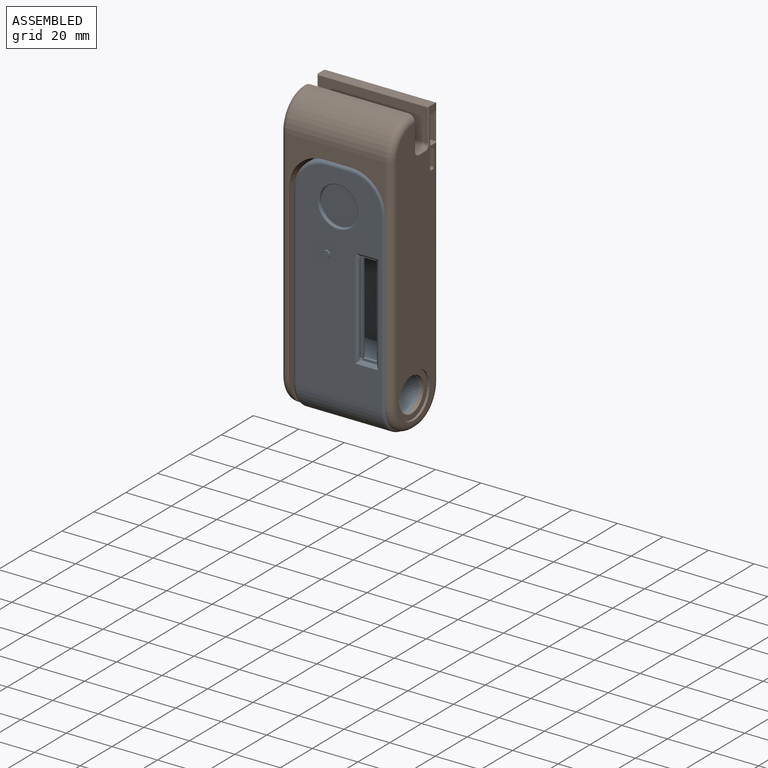
[diagram: assembled view]
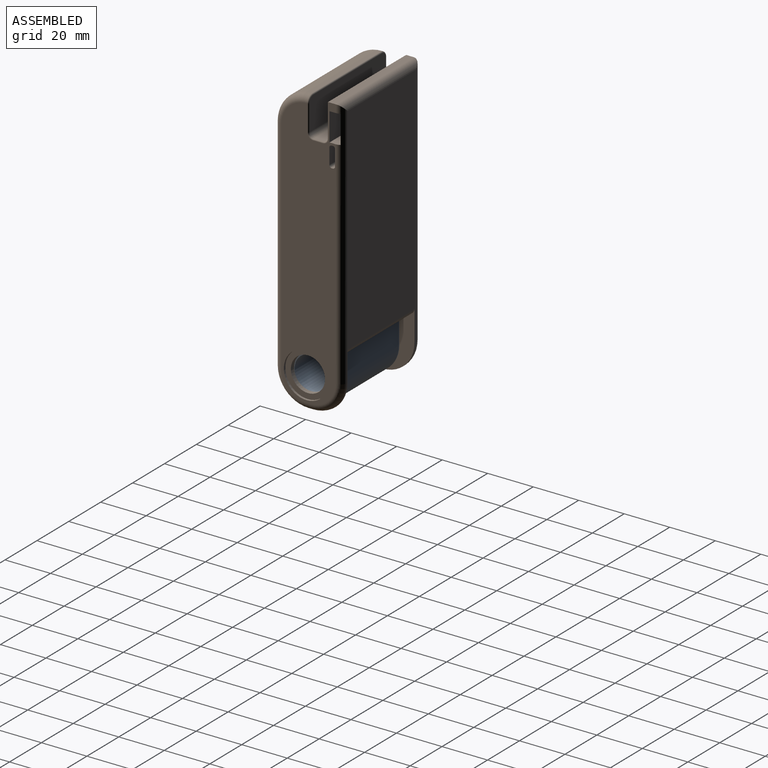
[diagram: assembled view, second angle]
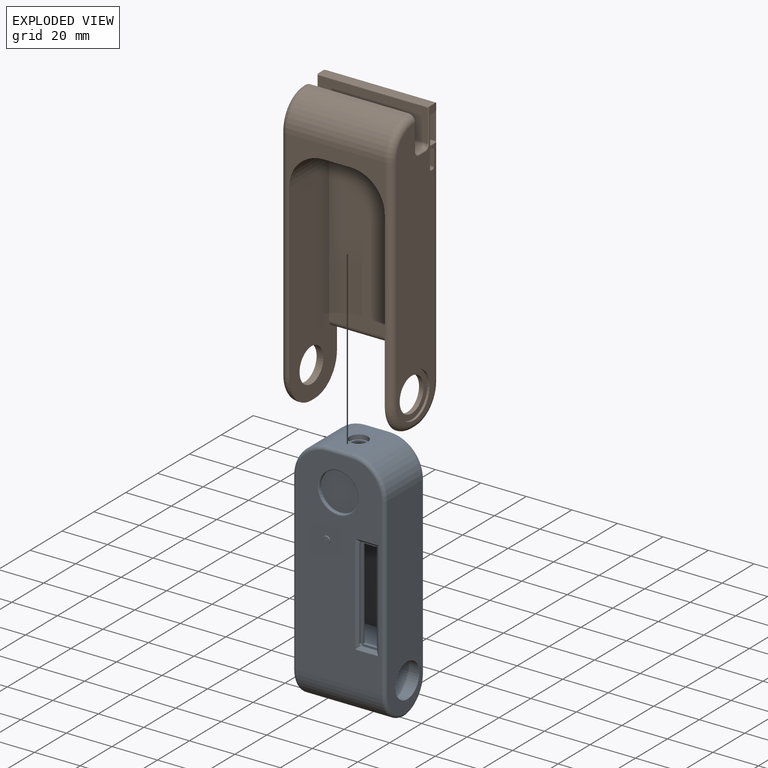
[diagram: exploded view]
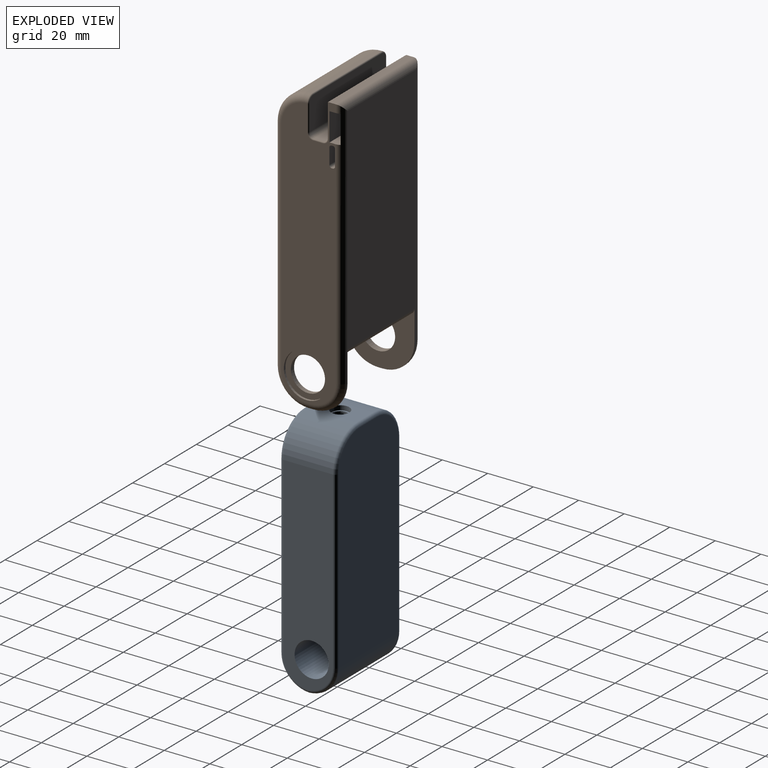
[diagram: exploded view, second angle]
ASSEMBLY  parts=2 mates=2
PART A: 62 faces, bbox 43.1x26.9x107.3 mm
  f0: cylinder r=3.25mm len=6.5mm, axis (0,0,1), area 20.4mm2, adj f12,f34
  f1: plane 6x1mm, normal (0,0,-1), area 6mm2, adj f2,f4,f5,f17
  f2: plane 40x1mm, normal (1,0,0), area 40mm2, adj f1,f3,f5,f17
  f3: plane 6x1mm, normal (0,0,1), area 6mm2, adj f2,f4,f5,f17
  f4: plane 40x1mm, normal (-1,0,0), area 40mm2, adj f1,f3,f5,f17
  f5: plane 74.94x34.6mm, normal (0,1,0), area 2291.1mm2, adj f1,f2,f3,f4,f7,f8,f9,f10
  f6: plane 74.94x34.6mm, normal (0,-1,0), area 2531.1mm2, adj f7,f8,f9,f10,f11,f12
  f7: cylinder r=12mm len=19mm, axis (0,-1,0), area 358.1mm2, adj f5,f6,f8,f12
  f8: plane 62.94x19mm, normal (-1,0,0), area 1195.8mm2, adj f5,f6,f7,f9
  f9: plane 34.6x19mm, normal (0,0,1), area 657.4mm2, adj f5,f6,f8,f10
  f10: plane 62.94x19mm, normal (1,0,0), area 1195.8mm2, adj f5,f6,f9,f11
  f11: cylinder r=12mm len=19mm, axis (0,-1,0), area 358.1mm2, adj f5,f6,f10,f12
  f12: plane 19x10.6mm, normal (0,0,-1), area 168.2mm2, adj f0,f5,f6,f7,f11
  f13: plane 40x1mm, normal (1,0,0), area 40mm2, adj f17,f53,f57,f59
  f14: plane 6x1mm, normal (0,0,1), area 6mm2, adj f17,f55,f56,f57
  f15: plane 40x1mm, normal (-1,0,0), area 40mm2, adj f17,f54,f56,f58
  f16: plane 6x1mm, normal (0,0,-1), area 6mm2, adj f17,f52,f58,f59
  f17: plane 42x8mm, normal (0,-1,0), area 94mm2, adj f1,f2,f3,f4,f13,f14,f15,f16
  f18: plane 90.5x37.6mm, normal (0,1,0), area 3324.6mm2, adj f19,f41,f43,f45,f47,f49
  f19: cylinder r=13mm len=37.6mm, axis (1,0,0), area 745.2mm2, adj f18,f25,f39,f51
  f20: cylinder r=7.5mm len=40.6mm, axis (1,0,0), area 1913.2mm2, adj f24,f26
  f21: cylinder r=15mm len=21.8mm, axis (0,-1,0), area 513.7mm2, adj f22,f26,f46,f47
  f22: plane 21.8x10.6mm, normal (0,0,1), area 180.8mm2, adj f21,f23,f35,f44,f45
  f23: cylinder r=15mm len=21.8mm, axis (0,1,0), area 513.7mm2, adj f22,f24,f42,f43
  f24: plane 88.48x21.8mm, normal (1,0,0), area 1695.8mm2, adj f20,f23,f38,f39,f40,f41
  f25: cylinder r=13mm len=37.6mm, axis (-1,0,0), area 745.2mm2, adj f19,f27,f38,f50
  f26: plane 88.48x21.8mm, normal (-1,0,0), area 1695.8mm2, adj f20,f21,f48,f49,f50,f51
  f27: plane 90.5x37.6mm, normal (0,-1,0), area 2621.6mm2, adj f25,f29,f40,f42,f44,f46,f48,f52
  f28: cylinder r=1.25mm len=2.5mm, axis (0,1,0), area 0.8mm2, adj f30,f31
  f29: cylinder r=1.5mm len=3mm, axis (0,1,0), area 2.8mm2, adj f27,f60
  f30: plane 2.6x2.6mm, normal (0,-1,0), area 0.4mm2, adj f28,f60
  f31: plane 2.5x2.5mm, normal (0,-1,0), area 4.5mm2, adj f28,f32
  f32: cylinder r=0.38mm len=0.76mm, axis (0,1,0), area 0.5mm2, adj f31,f33
  f33: plane 0.76x0.76mm, normal (0,-1,0), area 0.4mm2, adj f32
  f34: plane 8x8mm, normal (0,0,1), area 17.1mm2, adj f0,f35
  f35: cylinder r=4mm len=8mm, axis (0,0,1), area 50.3mm2, adj f22,f34
  f36: cylinder r=8.53mm len=17.05mm, axis (0,-1,0), area 53.6mm2, adj f37,f61
  f37: plane 17.05x17.05mm, normal (0,-1,0), area 228.3mm2, adj f36
  f38: torus R=11.5mm, axis (1,0,0), area 44.7mm2, adj f24,f25,f39,f40
  f39: torus R=11.5mm, axis (1,0,0), area 44.7mm2, adj f19,f24,f38,f41
  f40: cylinder r=1.5mm len=77mm, axis (0,0,-1), area 181.4mm2, adj f24,f27,f38,f42
  f41: cylinder r=1.5mm len=77mm, axis (0,0,1), area 181.4mm2, adj f18,f24,f39,f43
  f42: torus R=13.5mm, axis (0,-1,0), area 53.5mm2, adj f23,f27,f40,f44
  f43: torus R=13.5mm, axis (0,-1,0), area 53.5mm2, adj f18,f23,f41,f45
  f44: cylinder r=1.5mm len=10.6mm, axis (1,0,0), area 25mm2, adj f22,f27,f42,f46
  f45: cylinder r=1.5mm len=10.6mm, axis (-1,0,0), area 25mm2, adj f18,f22,f43,f47
  f46: torus R=13.5mm, axis (0,-1,0), area 53.5mm2, adj f21,f27,f44,f48
  f47: torus R=13.5mm, axis (0,-1,0), area 53.5mm2, adj f18,f21,f45,f49
  f48: cylinder r=1.5mm len=77mm, axis (0,0,1), area 181.4mm2, adj f26,f27,f46,f50
  f49: cylinder r=1.5mm len=77mm, axis (0,0,-1), area 181.4mm2, adj f18,f26,f47,f51
  f50: torus R=11.5mm, axis (1,0,0), area 44.7mm2, adj f25,f26,f48,f51
  f51: torus R=11.5mm, axis (1,0,0), area 44.7mm2, adj f19,f26,f49,f50
  f52: plane 10x1.5mm, normal (0,-0.71,-0.71), area 13.4mm2, adj f16,f27,f53,f54,f58,f59
  f53: plane 44x1.5mm, normal (0.71,-0.71,0), area 61.5mm2, adj f13,f27,f52,f55,f57,f59
  f54: plane 44x1.5mm, normal (-0.71,-0.71,0), area 61.5mm2, adj f15,f27,f52,f55,f56,f58
  f55: plane 10x1.5mm, normal (0,-0.71,0.71), area 13.4mm2, adj f14,f27,f53,f54,f56,f57
  f56: plane 1x1mm, normal (-0.71,0,0.71), area 1.1mm2, adj f14,f15,f17,f54,f55
  f57: plane 1x1mm, normal (0.71,0,0.71), area 1.1mm2, adj f13,f14,f17,f53,f55
  f58: plane 1x1mm, normal (-0.71,0,-0.71), area 1.1mm2, adj f15,f16,f17,f52,f54
  f59: plane 1x1mm, normal (0.71,0,-0.71), area 1.1mm2, adj f13,f16,f17,f52,f53
  f60: torus R=1.3mm, axis (0,-1,0), area 2.8mm2, adj f29,f30
  f61: torus R=9.03mm, axis (0,-1,0), area 43mm2, adj f27,f36
PART B: 113 faces, bbox 49.9x32.3x127.3 mm
  f0: cylinder r=7.5mm len=15mm, axis (1,0,0), area 94.2mm2, adj f10,f112
  f1: plane 122x24mm, normal (1,0,0), area 2297.5mm2, adj f5,f19,f20,f21,f22,f59,f60,f61
  f2: cylinder r=7.5mm len=15mm, axis (-1,0,0), area 141.4mm2, adj f8,f57
  f3: plane 43x0.5mm, normal (0,0,1), area 21.5mm2, adj f11,f80,f83,f108
  f4: plane 122x24mm, normal (-1,0,0), area 2289.4mm2, adj f5,f23,f24,f26,f33,f34,f36,f43
  f5: plane 49x3.3mm, normal (0,0,1), area 161.7mm2, adj f1,f4,f92,f99
  f6: plane 97x43mm, normal (0,-1,0), area 445.6mm2, adj f8,f11,f12,f14,f16,f17,f82,f87
  f7: plane 108x43mm, normal (0,1,0), area 4077mm2, adj f8,f13,f56,f90,f92,f94
  f8: plane 90x30mm, normal (1,0,0), area 2116.8mm2, adj f2,f6,f7,f9,f12,f13,f15,f17
  f9: plane 2x1mm, normal (0,0,-1), area 2mm2, adj f8,f12,f13,f86
  f10: plane 90x30mm, normal (-1,0,0), area 2116.8mm2, adj f0,f15,f16,f56,f87,f89,f91,f93
  f11: cylinder r=14mm len=43mm, axis (1,0,0), area 945.6mm2, adj f3,f6,f81,f85
  f12: cylinder r=14mm len=14mm, axis (1,0,0), area 22mm2, adj f6,f8,f9,f84
  f13: cylinder r=14mm len=14mm, axis (-1,0,0), area 22mm2, adj f7,f8,f9,f88
  f14: plane 25x12mm, normal (0,0,-1), area 300mm2, adj f6,f15,f16,f17
  f15: plane 77.5x42mm, normal (0,-1,0), area 3158.4mm2, adj f8,f10,f14,f16,f17,f56
  f16: cylinder r=15mm len=25mm, axis (0,-1,0), area 589mm2, adj f6,f10,f14,f15
  f17: cylinder r=15mm len=25mm, axis (0,1,0), area 589mm2, adj f6,f8,f14,f15
  f18: plane 9x2.5mm, normal (1,0,0), area 21.6mm2, adj f19,f20,f21,f22,f59,f60,f61,f62
  f19: plane 5x0.5mm, normal (0,0,-1), area 2.5mm2, adj f1,f18,f61,f62
  f20: plane 7x5mm, normal (0,-1,0), area 35mm2, adj f1,f18,f60,f61
  f21: plane 5x0.5mm, normal (0,0,1), area 2.5mm2, adj f1,f18,f59,f60
  f22: plane 7x5mm, normal (0,1,0), area 35mm2, adj f1,f18,f59,f62
  f23: plane 8.28x0.5mm, normal (0,-1,0), area 4.1mm2, adj f4,f24,f26,f27
  f24: plane 2.05x0.68mm, normal (0,0,1), area 1.1mm2, adj f4,f23,f25,f27,f90
  f25: plane 8.28x0.68mm, normal (0,1,0), area 5.6mm2, adj f24,f26,f27,f90
  f26: plane 2.05x0.68mm, normal (0,0,-1), area 1.1mm2, adj f4,f23,f25,f27,f90
  f27: plane 8.28x2.05mm, normal (-1,0,0), area 8.6mm2, adj f23,f24,f25,f26,f28,f29,f30,f31
  f28: plane 7.29x0.2mm, normal (0,-1,0), area 1.5mm2, adj f27,f29,f31,f32
  f29: plane 1.14x0.2mm, normal (0,0,1), area 0.2mm2, adj f27,f28,f30,f32
  f30: plane 7.29x0.2mm, normal (0,1,0), area 1.5mm2, adj f27,f29,f31,f32
  f31: plane 1.14x0.2mm, normal (0,0,-1), area 0.2mm2, adj f27,f28,f30,f32
  f32: plane 7.29x1.14mm, normal (-1,0,0), area 8.3mm2, adj f28,f29,f30,f31
  f33: plane 8.28x0.5mm, normal (0,-1,0), area 4.1mm2, adj f4,f34,f36,f37
  f34: plane 2.05x0.68mm, normal (0,0,1), area 1.1mm2, adj f4,f33,f35,f37,f90
  f35: plane 8.28x0.68mm, normal (0,1,0), area 5.6mm2, adj f34,f36,f37,f90
  f36: plane 2.05x0.68mm, normal (0,0,-1), area 1.1mm2, adj f4,f33,f35,f37,f90
  f37: plane 8.28x2.05mm, normal (-1,0,0), area 8.6mm2, adj f33,f34,f35,f36,f38,f39,f40,f41
  f38: plane 7.29x0.2mm, normal (0,-1,0), area 1.5mm2, adj f37,f39,f41,f42
  f39: plane 1.14x0.2mm, normal (0,0,1), area 0.2mm2, adj f37,f38,f40,f42
  f40: plane 7.29x0.2mm, normal (0,1,0), area 1.5mm2, adj f37,f39,f41,f42
  f41: plane 1.14x0.2mm, normal (0,0,-1), area 0.2mm2, adj f37,f38,f40,f42
  f42: plane 7.29x1.14mm, normal (-1,0,0), area 8.3mm2, adj f38,f39,f40,f41
  f43: plane 8.28x0.5mm, normal (0,-1,0), area 4.1mm2, adj f4,f44,f46,f47
  f44: plane 2.05x0.68mm, normal (0,0,1), area 1.1mm2, adj f4,f43,f45,f47,f90
  f45: plane 8.28x0.68mm, normal (0,1,0), area 5.6mm2, adj f44,f46,f47,f90
  f46: plane 2.05x0.68mm, normal (0,0,-1), area 1.1mm2, adj f4,f43,f45,f47,f90
  f47: plane 8.28x2.05mm, normal (-1,0,0), area 8.6mm2, adj f43,f44,f45,f46,f48,f49,f50,f51
  f48: plane 7.29x0.2mm, normal (0,-1,0), area 1.5mm2, adj f47,f49,f51,f52
  f49: plane 1.14x0.2mm, normal (0,0,1), area 0.2mm2, adj f47,f48,f50,f52
  f50: plane 7.29x0.2mm, normal (0,1,0), area 1.5mm2, adj f47,f49,f51,f52
  f51: plane 1.14x0.2mm, normal (0,0,-1), area 0.2mm2, adj f47,f48,f50,f52
  f52: plane 7.29x1.14mm, normal (-1,0,0), area 8.3mm2, adj f48,f49,f50,f51
  f53: plane 48x14mm, normal (0,1,0), area 669.3mm2, adj f96,f104,f106,f108,f109,f110
  f54: plane 48x14mm, normal (0,-1,0), area 672mm2, adj f95,f97,f99,f101
  f55: plane 48x4.2mm, normal (0,0,1), area 201.6mm2, adj f95,f96,f100,f105
  f56: cylinder r=2.5mm len=42mm, axis (1,0,0), area 329.9mm2, adj f7,f8,f10,f15
  f57: plane 20x20mm, normal (-1,0,0), area 137.4mm2, adj f2,f58
  f58: cylinder r=10mm len=20mm, axis (-1,0,0), area 62.8mm2, adj f4,f57
  f59: cylinder r=1mm len=5mm, axis (1,0,0), area 7.9mm2, adj f1,f18,f21,f22
  f60: cylinder r=1mm len=5mm, axis (-1,0,0), area 7.9mm2, adj f1,f18,f20,f21
  f61: cylinder r=1mm len=5mm, axis (1,0,0), area 7.9mm2, adj f1,f18,f19,f20
  f62: cylinder r=1mm len=5mm, axis (-1,0,0), area 7.9mm2, adj f1,f18,f19,f22
  f63: extruded ~6.84x2.74mm, area 9.6mm2, adj f4,f64
  f64: plane 6.86x2.77mm, normal (-1,0,0), area 17.8mm2, adj f63
  f65: extruded ~1.69x1.62mm, area 2.6mm2, adj f4,f66
  f66: plane 1.73x1.68mm, normal (-1,0,0), area 1.7mm2, adj f65
  f67: extruded ~2.08x1.22mm, area 2.6mm2, adj f4,f68
  f68: plane 2.12x1.3mm, normal (-1,0,0), area 1.6mm2, adj f67
  f69: extruded ~1.54x0.92mm, area 1.9mm2, adj f4,f70
  f70: plane 1.57x0.96mm, normal (-1,0,0), area 0.9mm2, adj f69
  f71: cylinder r=1.78mm len=3.55mm, axis (-1,0,0), area 5.6mm2, adj f4,f72
  f72: plane 3.55x3.55mm, normal (-1,0,0), area 6.6mm2, adj f71,f74
  f73: plane 2.48x2.48mm, normal (-1,0,0), area 3.3mm2, adj f74
  f74: extruded ~2.43x2.43mm, area 6.2mm2, adj f72,f73
  f75: plane 12.5x12.4mm, normal (0,1,0), area 155mm2, adj f1,f76,f78,f79
  f76: plane 12.5x4.5mm, normal (0,0,1), area 56mm2, adj f1,f75,f77,f79,f94
  f77: plane 12.4x11.98mm, normal (0,-1,0), area 148.5mm2, adj f76,f78,f79,f94
  f78: plane 12.5x4.5mm, normal (0,0,-1), area 56mm2, adj f1,f75,f77,f79,f94
  f79: plane 12.4x4.5mm, normal (1,0,0), area 55.8mm2, adj f75,f76,f77,f78
  f80: cylinder r=3mm len=3mm, axis (0,-1,0), area 2.4mm2, adj f3,f4,f81,f106
  f81: torus R=11mm, axis (1,0,0), area 95.6mm2, adj f4,f11,f80,f82
  f82: cylinder r=3mm len=97mm, axis (0,0,1), area 457.1mm2, adj f4,f6,f81,f84
  f83: cylinder r=3mm len=3mm, axis (0,1,0), area 2.4mm2, adj f1,f3,f85,f110
  f84: torus R=11mm, axis (1,0,0), area 95.6mm2, adj f4,f12,f82,f86
  f85: torus R=11mm, axis (1,0,0), area 95.6mm2, adj f1,f11,f83,f87
  f86: cylinder r=3mm len=3mm, axis (0,-1,0), area 9.4mm2, adj f4,f9,f84,f88
  f87: cylinder r=3mm len=97mm, axis (0,0,-1), area 457.1mm2, adj f1,f6,f10,f85,f89
  f88: torus R=11mm, axis (1,0,0), area 95.6mm2, adj f4,f13,f86,f90
  f89: torus R=11mm, axis (1,0,0), area 95.6mm2, adj f1,f10,f87,f91
  f90: cylinder r=3mm len=111mm, axis (0,0,-1), area 492.1mm2, adj f4,f7,f24,f25,f26,f34,f35,f36
  f91: cylinder r=3mm len=3mm, axis (0,1,0), area 9.4mm2, adj f1,f10,f89,f93
  f92: cylinder r=3mm len=49mm, axis (-1,0,0), area 220.6mm2, adj f5,f7,f90,f94
  f93: torus R=11mm, axis (1,0,0), area 95.6mm2, adj f1,f10,f91,f94
  f94: cylinder r=3mm len=111mm, axis (0,0,1), area 495.6mm2, adj f1,f7,f10,f76,f77,f78,f92,f93
  f95: cylinder r=2mm len=48mm, axis (-1,0,0), area 150.8mm2, adj f54,f55,f98,f103
  f96: cylinder r=2mm len=48mm, axis (1,0,0), area 150.8mm2, adj f53,f55,f102,f107
  f97: cylinder r=0.5mm len=14.5mm, axis (0,0,1), area 11.2mm2, adj f4,f54,f98,f99
  f98: torus R=2.5mm, axis (1,0,0), area 2.7mm2, adj f4,f95,f97,f100
  f99: cylinder r=0.5mm len=49mm, axis (1,0,0), area 38.2mm2, adj f5,f54,f97,f101
  f100: cylinder r=0.5mm len=4.2mm, axis (0,-1,0), area 3.3mm2, adj f4,f55,f98,f102
  f101: cylinder r=0.5mm len=14.5mm, axis (0,0,-1), area 11.2mm2, adj f1,f54,f99,f103
  f102: torus R=2.5mm, axis (1,0,0), area 2.7mm2, adj f4,f96,f100,f104
  f103: torus R=2.5mm, axis (1,0,0), area 2.7mm2, adj f1,f95,f101,f105
  f104: cylinder r=0.5mm len=11.5mm, axis (0,0,-1), area 9mm2, adj f4,f53,f102,f106
  f105: cylinder r=0.5mm len=4.2mm, axis (0,-1,0), area 3.3mm2, adj f1,f55,f103,f107
  f106: torus R=2.5mm, axis (0,1,0), area 3.5mm2, adj f53,f80,f104,f108
  f107: torus R=2.5mm, axis (1,0,0), area 2.7mm2, adj f1,f96,f105,f109
  f108: cylinder r=0.5mm len=43mm, axis (-1,0,0), area 33.8mm2, adj f3,f53,f106,f110
  f109: cylinder r=0.5mm len=11.5mm, axis (0,0,1), area 9mm2, adj f1,f53,f107,f110
  f110: torus R=2.5mm, axis (0,1,0), area 3.5mm2, adj f53,f83,f108,f109
  f111: cylinder r=9.9mm len=19.8mm, axis (1,0,0), area 62.2mm2, adj f1,f112
  f112: plane 19.8x19.8mm, normal (1,0,0), area 131.2mm2, adj f0,f111
PLACE A t=(72.09,-150.3,-55.04)mm
PLACE B t=(69.42,-145.3,-48.42)mm
MATE planar A.f18 <-> B.f15  axis (0,1,0) through (74.22,-150.3,-54.1)mm
MATE planar A.f18 <-> B.f15  axis (0,1,0) through (74.22,-150.3,-54.1)mm
